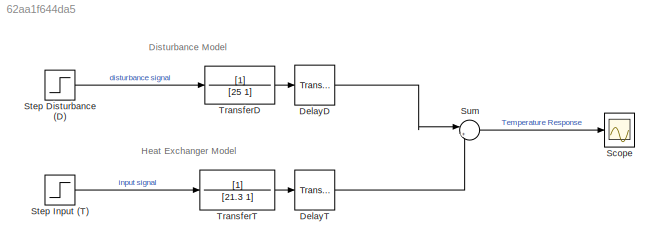
MODEL slx_62aa1f644da5
KIND model
CONFIG AbsTol = auto
CONFIG EnableMultiTasking = off
CONFIG FixedStep = auto
CONFIG MaxStep = auto
CONFIG MinStep = auto
CONFIG RelTol = 1e-3
CONFIG SampleTimeConstraint = Unconstrained
CONFIG SolverName = VariableStepAuto
CONFIG StartTime = 0.0
CONFIG StopTime = 500
BLOCK [TransportDelay] DelayD
  DelayTime = 35
BLOCK [TransportDelay] DelayT
  DelayTime = 14.7
BLOCK [Scope] Scope
  ActiveDisplayYMaximum = 2.4388712300300672
  ActiveDisplayYMinimum = -0.5344524255788472
  Floating = off
  GraphicalSettings = {"Style":{"BackgroundColor":[0.12941176470588237,0.12941176470588237,0.12941176470588237],"AxesColor":[0.07058823529411765,0.07058823529411765,0.07058823529411765],"LabelsColor":[0.8509803921568627,0.8509803921568627,0.8509803921568627],"PreserveColors":false,"Visible":[true],"LineStyle":["-"],"LineWidth":[1.5],"BarWidth":[0.9],"LineColor":["auto"],"LineFaceAlpha":[1],"LineEdgeAlpha":[1],"Marker":...<+2061ch>
  MultipleDisplayCache = [{"MaxYLimMag":2.24996901234682,"MaxYLimReal":2.4388712300300672,"MinYLimMag":0,"MinYLimReal":-0.5344524255788472,"PlotAsMagnitudePhase":false,"ShowGrid":true,"ShowLegend":true,"Title":"%<SignalLabel>","YLabel":""}]
  NumInputPorts = 1
  ScopeFrameLocation = window
  ShowLegend = on
  WasSavedAsWebScope = on
  WindowPosition = [529.000000,100.000000,612.000000,467.000000,]
BLOCK [Step] Step Disturbance (D)
  SampleTime = 0
  Time = 0
BLOCK [Step] Step Input (T)
  SampleTime = 0
  Time = 0
BLOCK [Sum] Sum
  Inputs = |++
BLOCK [TransferFcn] TransferD
  ContinuousStateAttributes = 'disturbance'
  Denominator = [25 1]
BLOCK [TransferFcn] TransferT
  ContinuousStateAttributes = 'heat'
  Denominator = [21.3 1]
ANNOTATION (root): Disturbance Model
ANNOTATION (root): Heat Exchanger Model
LINE DelayD:1 -> Sum:1
LINE DelayT:1 -> Sum:2
LINE Step Disturbance (D):1 -> TransferD:1
LINE Step Input (T):1 -> TransferT:1
LINE Sum:1 -> Scope:1
LINE TransferD:1 -> DelayD:1
LINE TransferT:1 -> DelayT:1
